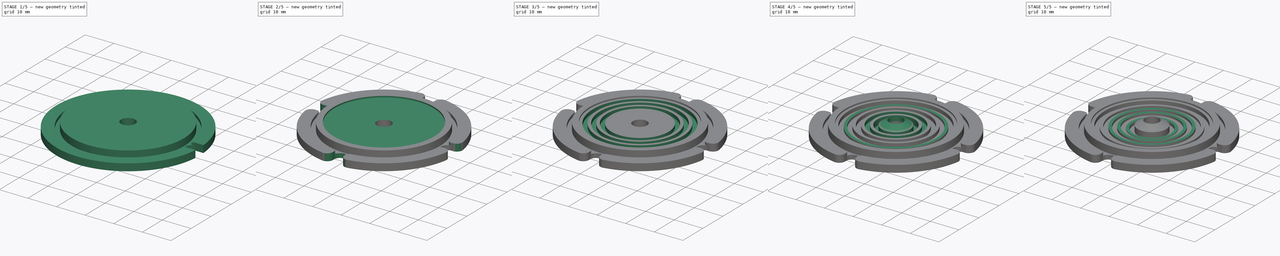
[diagram: build sequence overview — one tinted view per stage of 5, left to right]
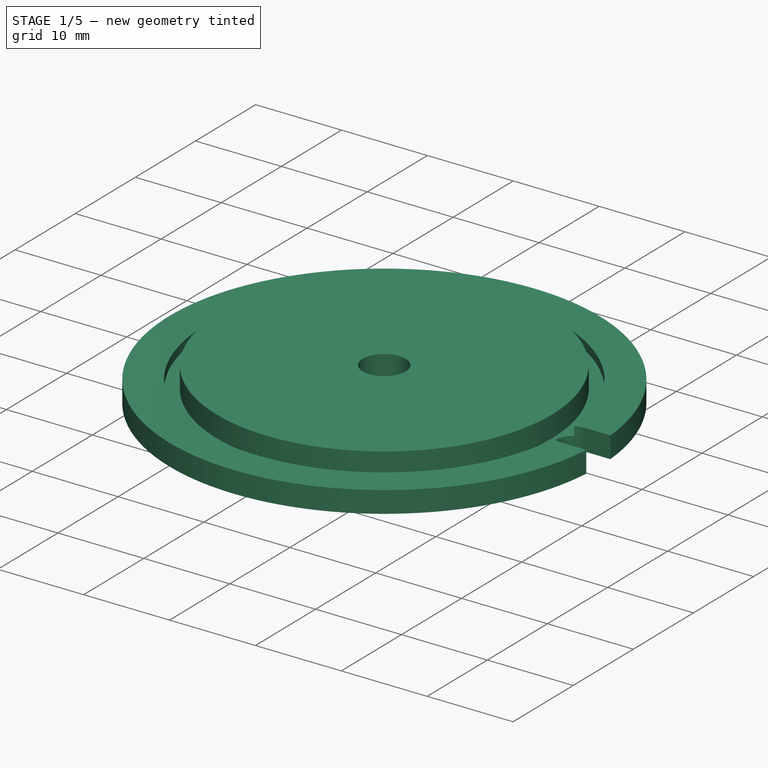
[diagram: stage 1 of 5 — iso view after this stage's code; geometry added in this stage tinted green]
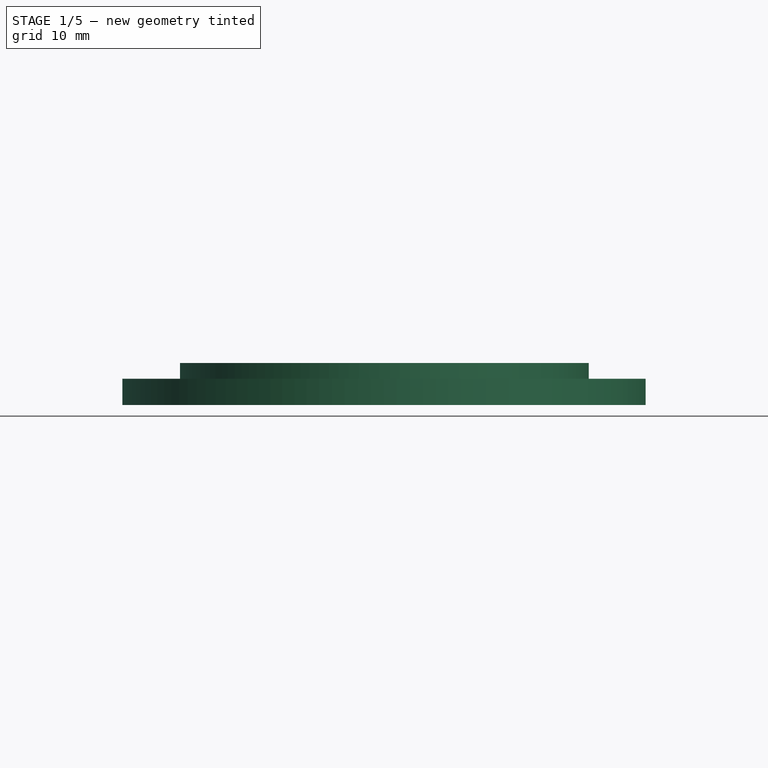
[diagram: stage 1 of 5 — front view after this stage's code; geometry added in this stage tinted green]
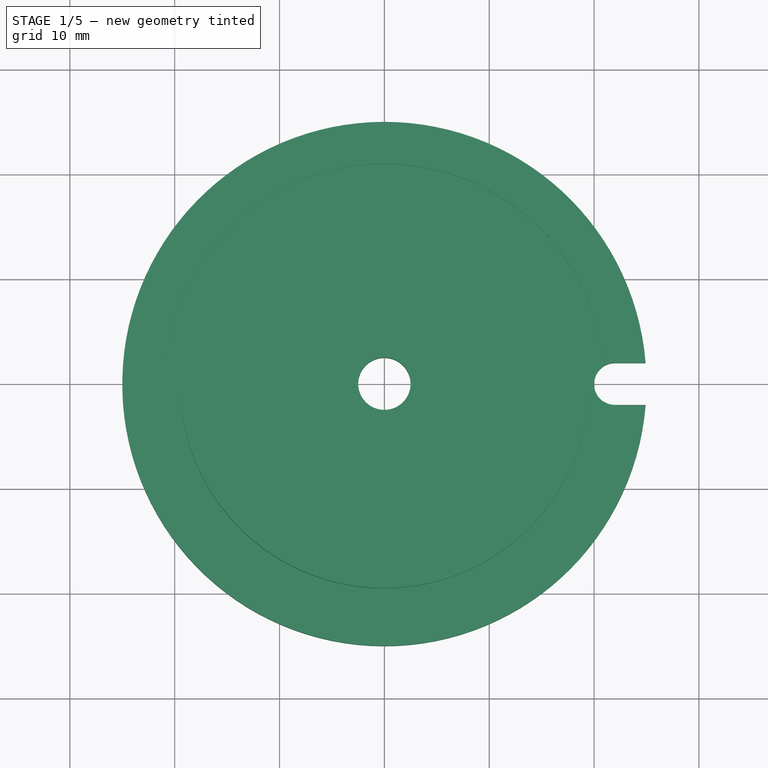
[diagram: stage 1 of 5 — top view after this stage's code; geometry added in this stage tinted green]
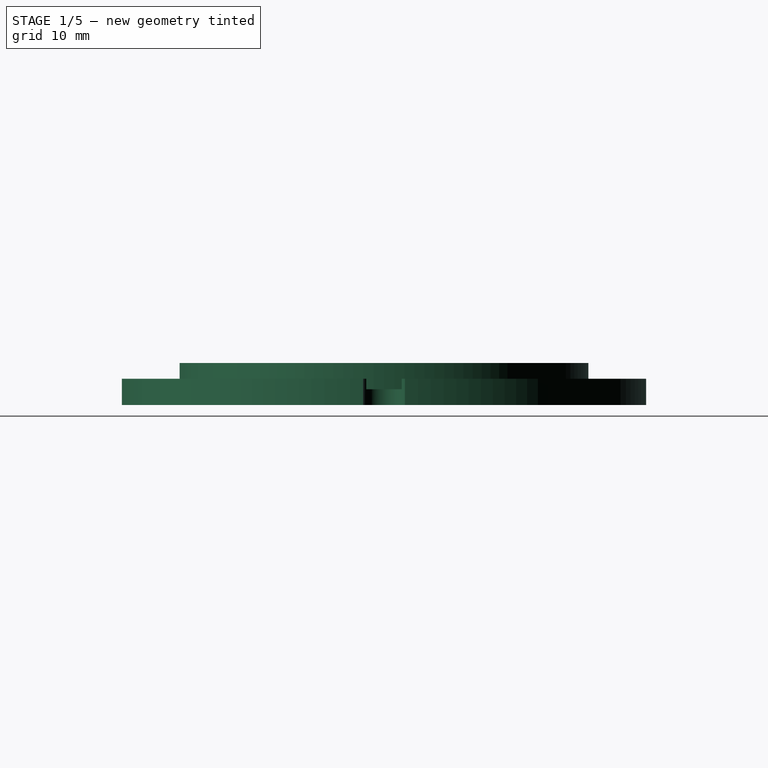
[diagram: stage 1 of 5 — right view after this stage's code; geometry added in this stage tinted green]
FCSTD DOCUMENT  (FreeCAD 0.18.3R)
Label: joystick_shaft_boot
License: All rights reserved
LicenseURL: http://en.wikipedia.org/wiki/All_rights_reserved
objects: PartDesign::Pocket×14, Sketcher::SketchObject×11, PartDesign::Fillet×2, PartDesign::Pad×1, PartDesign::PolarPattern×1, PartDesign::Revolution×1, PartDesign::Body×1
note: 47 computed .brp shape members not serialized (recipe doc carries the construction recipe); baked Part::Feature solids carry a one-line shape summary decoded from their .brp

FEATURE [Sketcher::SketchObject] Sketch
  MapMode = 5
  Support = -> [XY_Plane]
  sketch-geometry (2):
    g0: Circle CenterX=0 CenterY=0 CenterZ=0 NormalX=0 NormalY=0 NormalZ=1 AngleXU=0 Radius=25
    g1: Circle CenterX=0 CenterY=0 CenterZ=0 NormalX=0 NormalY=0 NormalZ=1 AngleXU=0 Radius=2.5
  constraints (4):
    c: Coincident(g0,g-1)
    c: Diameter(g0) = 50
    c: Coincident(g1,g0)
    c: Diameter(g1) = 5
FEATURE [PartDesign::Pad] Pad
  Length = 4
  Length2 = 100
  Profile = -> Sketch
  Type = 0
FEATURE [Sketcher::SketchObject] Sketch001
  ExternalGeometry = -> [Pad]
  MapMode = 5
  Placement = pos=(0,0,4) rot=(0,0,1;0rad)
  Support = -> [Pad]
  sketch-geometry (3):
    g0: Circle CenterX=0 CenterY=0 CenterZ=0 NormalX=0 NormalY=0 NormalZ=1 AngleXU=0 Radius=19.5
    g1: LineSegment [constr] StartX=25 StartY=0 StartZ=0 EndX=19.5 EndY=0 EndZ=0
    g2: Circle CenterX=0 CenterY=0 CenterZ=0 NormalX=0 NormalY=0 NormalZ=1 AngleXU=0 Radius=25
  constraints (8):
    c: Coincident(g0,g-1)
    c: PointOnObject(g1,g-1)
    c: PointOnObject(g1,g-1)
    c: PointOnObject(g1,g0)
    c: PointOnObject(g1,g-3)
    c: DistanceX(g1,g1) = 5.5
    c: Coincident(g2,g0)
    c: Equal(g2,g-3)
FEATURE [PartDesign::Pocket] Pocket
  BaseFeature = -> Pad
  Length = 1.5
  Length2 = 100
  Profile = -> Sketch001
  Type = 0
FEATURE [Sketcher::SketchObject] Sketch002
  ExternalGeometry = -> [Pocket]
  MapMode = 5
  Placement = pos=(0,0,2.5) rot=(0,0,1;0rad)
  Support = -> [Pocket]
  sketch-geometry (3):
    g0: Circle CenterX=0 CenterY=0 CenterZ=0 NormalX=0 NormalY=0 NormalZ=1 AngleXU=0 Radius=21
    g1: LineSegment [constr] StartX=19.5 StartY=0 StartZ=0 EndX=21 EndY=0 EndZ=0
    g2: Circle CenterX=0 CenterY=0 CenterZ=0 NormalX=0 NormalY=0 NormalZ=1 AngleXU=0 Radius=19.5
  constraints (8):
    c: Coincident(g0,g-1)
    c: PointOnObject(g1,g-1)
    c: Horizontal(g1)
    c: PointOnObject(g1,g0)
    c: PointOnObject(g1,g-3)
    c: DistanceX(g1,g1) = 1.5
    c: Coincident(g2,g0)
    c: Equal(g2,g-3)
FEATURE [PartDesign::Pocket] Pocket001
  BaseFeature = -> Pocket
  Length = 1
  Length2 = 100
  Profile = -> Sketch002
  Type = 0
FEATURE [Sketcher::SketchObject] Sketch003
  ExternalGeometry = -> [Pocket001]
  MapMode = 5
  Placement = pos=(0,0,2.5) rot=(0,0,1;0rad)
  Support = -> [Pocket001]
  sketch-geometry (7):
    g0: LineSegment StartX=22 StartY=2 StartZ=0 EndX=27 EndY=2 EndZ=0
    g1: LineSegment StartX=27 StartY=2 StartZ=0 EndX=27 EndY=-2 EndZ=0
    g2: LineSegment StartX=27 StartY=-2 StartZ=0 EndX=22 EndY=-2 EndZ=0
    g3: LineSegment [constr] StartX=22 StartY=-2 StartZ=0 EndX=22 EndY=2 EndZ=0
    g4: LineSegment [constr] StartX=27 StartY=0 StartZ=0 EndX=22 EndY=0 EndZ=0
    g5: ArcOfCircle CenterX=22 CenterY=0 CenterZ=0 NormalX=0 NormalY=0 NormalZ=1 AngleXU=0 Radius=2 StartAngle=1.5708 EndAngle=4.71239
    g6: LineSegment [constr] StartX=21 StartY=0 StartZ=0 EndX=22 EndY=0 EndZ=0
  constraints (20):
    c: Coincident(g0,g1)
    c: Coincident(g1,g2)
    c: Coincident(g2,g3)
    c: Coincident(g3,g0)
    c: Horizontal(g0)
    c: Horizontal(g2)
    c: Vertical(g3)
    c: Symmetric(g1,g0,g-1)
    c: DistanceX(g0,g0) = 5
    c: PointOnObject(g4,g-1)
    c: PointOnObject(g4,g1)
    c: Coincident(g5,g4)
    c: Coincident(g5,g0)
    c: Coincident(g5,g2)
    c: DistanceY(g1,g1) = 4
    c: PointOnObject(g6,g-1)
    c: Coincident(g5,g6)
    c: PointOnObject(g6,g-4)
    c: DistanceX(g6,g6) = 1
    c: PointOnObject(g5,g3)
FEATURE [PartDesign::Pocket] Pocket002
  BaseFeature = -> Pocket001
  Length = 5
  Length2 = 100
  Profile = -> Sketch003
  Type = 0
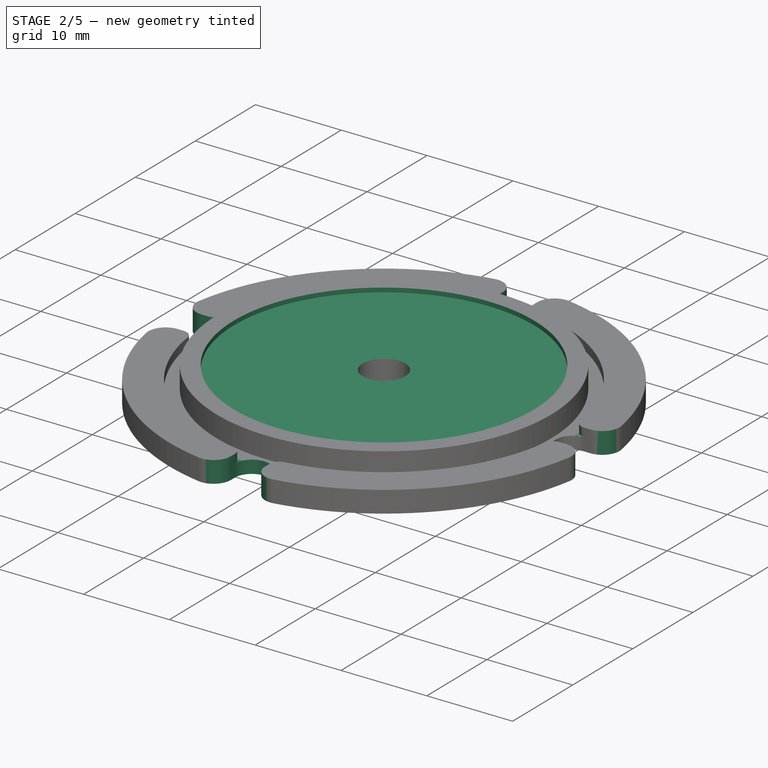
[diagram: stage 2 of 5 — iso view after this stage's code; geometry added in this stage tinted green]
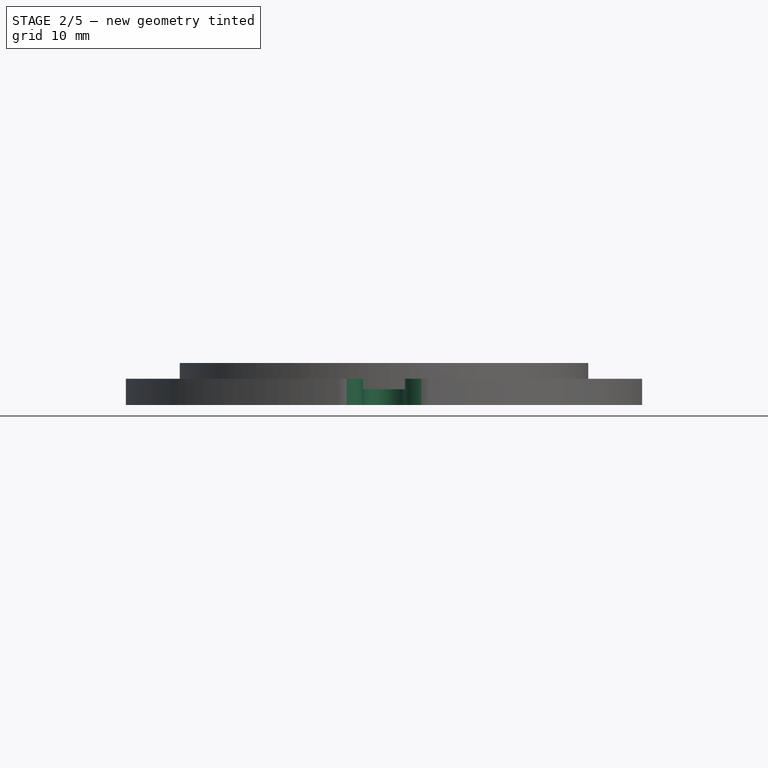
[diagram: stage 2 of 5 — front view after this stage's code; geometry added in this stage tinted green]
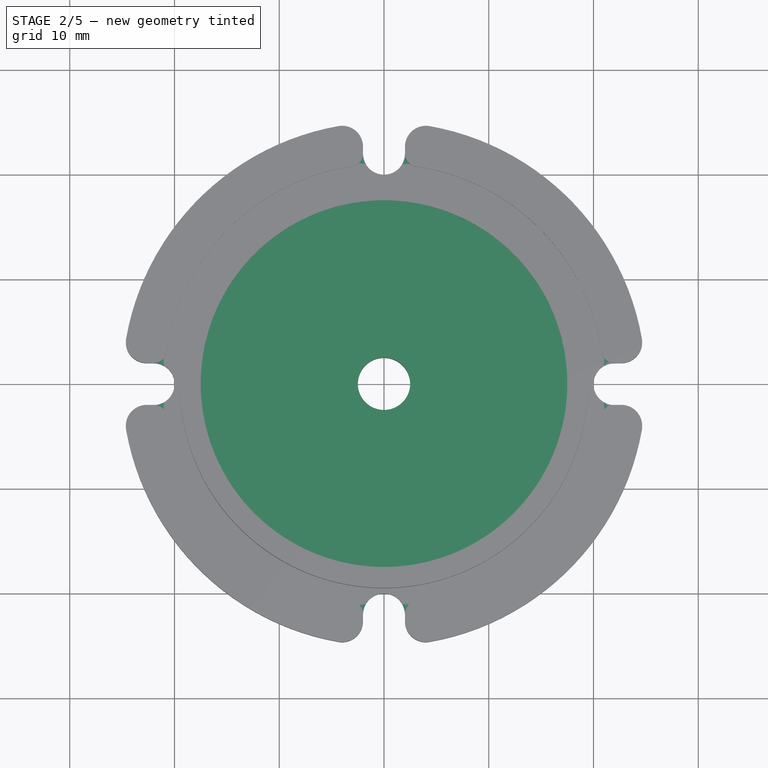
[diagram: stage 2 of 5 — top view after this stage's code; geometry added in this stage tinted green]
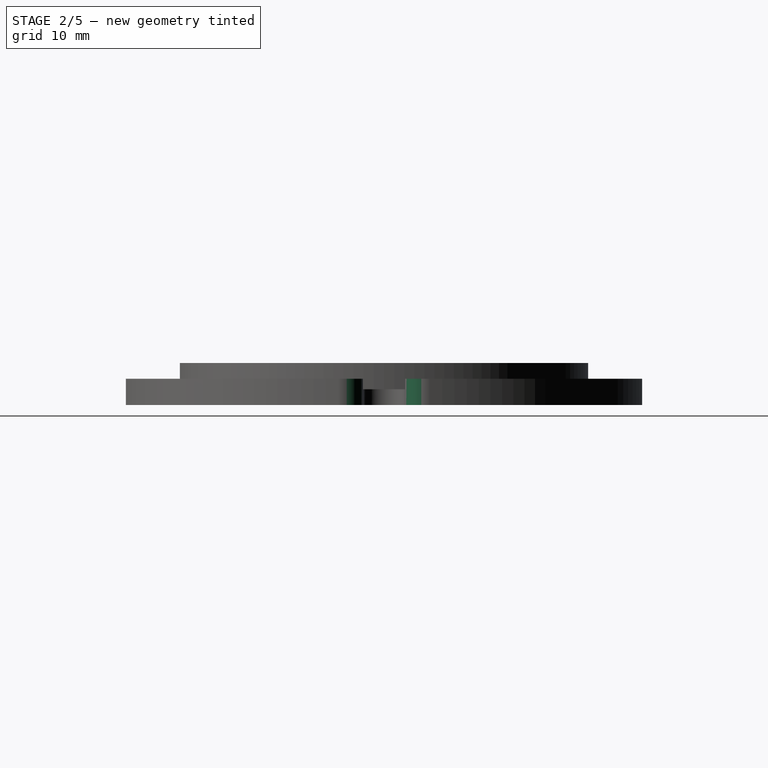
[diagram: stage 2 of 5 — right view after this stage's code; geometry added in this stage tinted green]
FEATURE [PartDesign::PolarPattern] PolarPattern
  Angle = 360
  Axis = -> Z_Axis
  BaseFeature = -> Pocket002
  Occurrences = 4
  Originals = -> [Pocket002]
FEATURE [PartDesign::Fillet] Fillet
  Base = -> PolarPattern [Edge46,Edge36,Edge4,Edge34,Edge60,Edge2,Edge58,Edge48]
  BaseFeature = -> PolarPattern
  Radius = 2
FEATURE [PartDesign::Fillet] Fillet001
  Base = -> Fillet [Edge55,Edge57,Edge85,Edge83,Edge66,Edge68,Edge43,Edge45]
  BaseFeature = -> Fillet
  Radius = 1.2
FEATURE [Sketcher::SketchObject] Sketch004
  ExternalGeometry = -> [Fillet001]
  MapMode = 5
  Placement = pos=(0,0,4) rot=(0,0,1;0rad)
  Support = -> [Fillet001]
  sketch-geometry (2):
    g0: Circle CenterX=0 CenterY=0 CenterZ=0 NormalX=0 NormalY=0 NormalZ=1 AngleXU=0 Radius=17.5
    g1: LineSegment [constr] StartX=17.5 StartY=0 StartZ=0 EndX=19.5 EndY=0 EndZ=0
  constraints (6):
    c: Coincident(g0,g-1)
    c: PointOnObject(g1,g-1)
    c: PointOnObject(g1,g-1)
    c: PointOnObject(g1,g-3)
    c: PointOnObject(g1,g0)
    c: DistanceX(g1,g1) = 2
FEATURE [PartDesign::Pocket] Pocket003
  BaseFeature = -> Fillet001
  Length = 0.5
  Length2 = 100
  Profile = -> Sketch004
  Type = 0
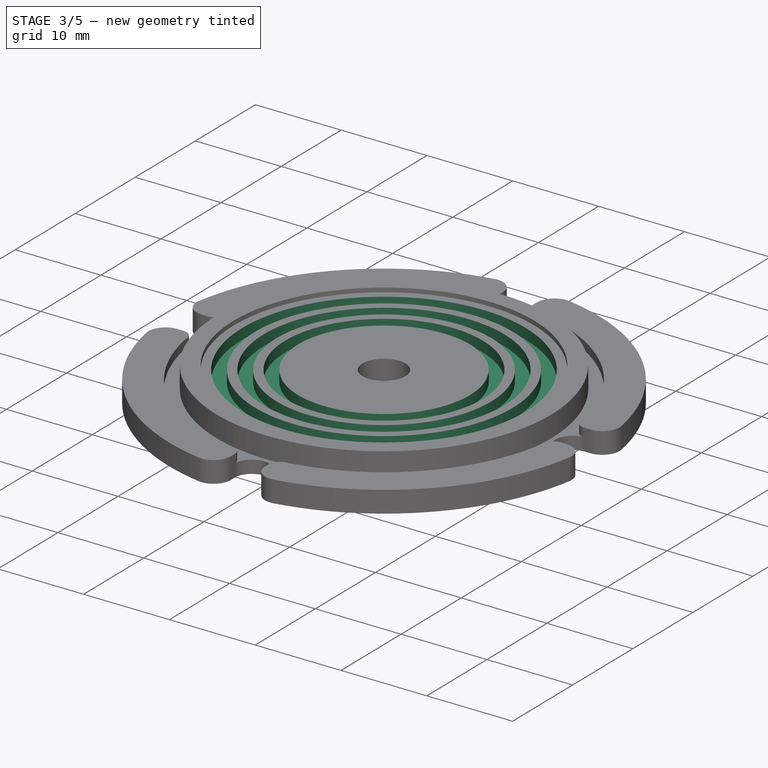
[diagram: stage 3 of 5 — iso view after this stage's code; geometry added in this stage tinted green]
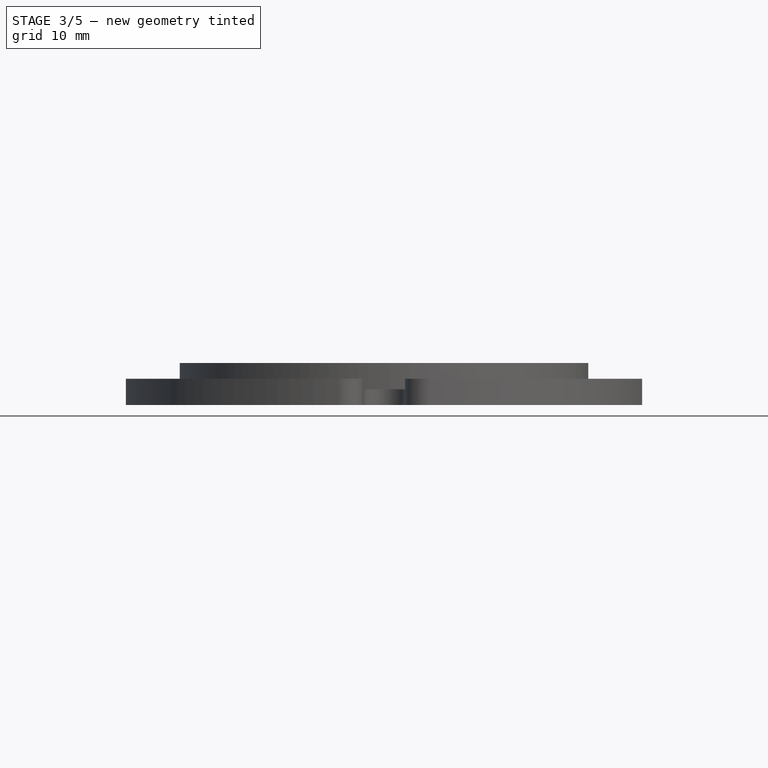
[diagram: stage 3 of 5 — front view after this stage's code; geometry added in this stage tinted green]
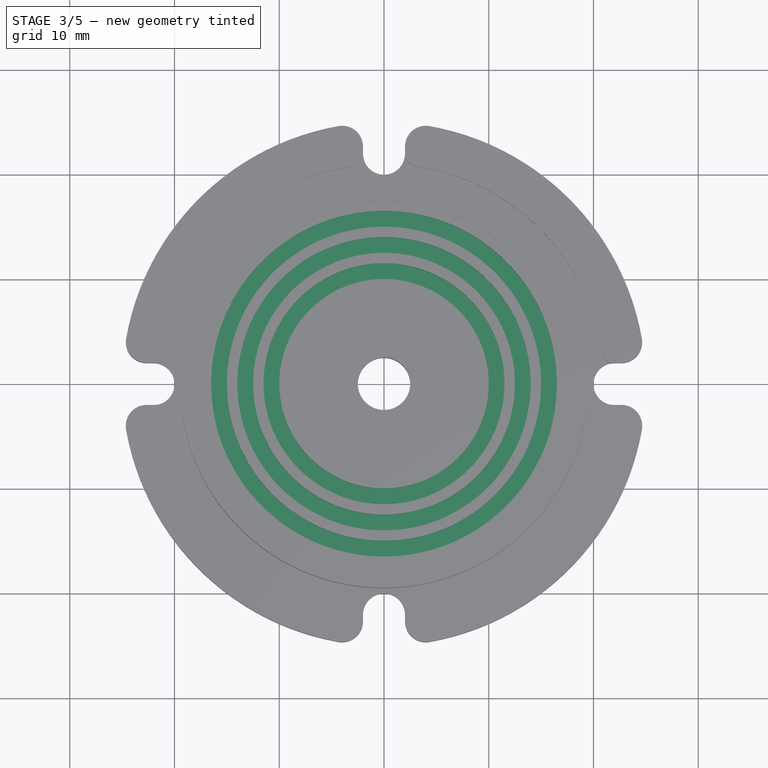
[diagram: stage 3 of 5 — top view after this stage's code; geometry added in this stage tinted green]
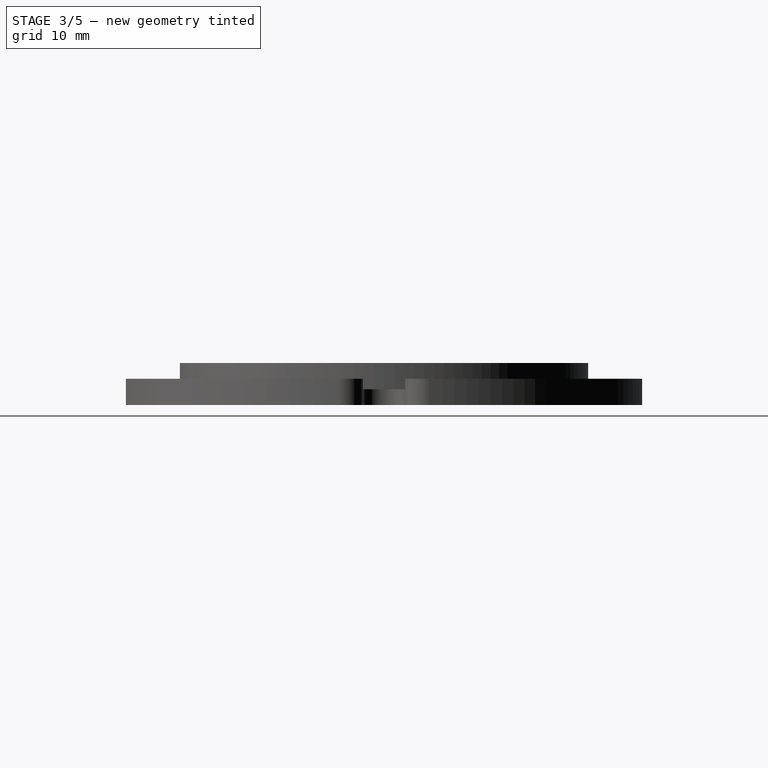
[diagram: stage 3 of 5 — right view after this stage's code; geometry added in this stage tinted green]
FEATURE [Sketcher::SketchObject] Sketch005
  ExternalGeometry = -> [Pocket003]
  MapMode = 5
  Placement = pos=(0,0,3.5) rot=(0,0,1;0rad)
  Support = -> [Pocket003]
  sketch-geometry (4):
    g0: Circle CenterX=0 CenterY=0 CenterZ=0 NormalX=0 NormalY=0 NormalZ=1 AngleXU=0 Radius=16.5
    g1: LineSegment [constr] StartX=16.5 StartY=0 StartZ=0 EndX=17.5 EndY=0 EndZ=0
    g2: LineSegment [constr] StartX=16.5 StartY=0 StartZ=0 EndX=15 EndY=0 EndZ=0
    g3: Circle CenterX=0 CenterY=0 CenterZ=0 NormalX=0 NormalY=0 NormalZ=1 AngleXU=0 Radius=15
  constraints (11):
    c: Coincident(g0,g-1)
    c: PointOnObject(g1,g-1)
    c: PointOnObject(g1,g-1)
    c: PointOnObject(g1,g-3)
    c: PointOnObject(g1,g0)
    c: DistanceX(g1,g1) = 1
    c: PointOnObject(g2,g-1)
    c: Coincident(g3,g0)
    c: PointOnObject(g2,g3)
    c: DistanceX(g2,g2) = 1.5
    c: Coincident(g2,g1)
FEATURE [PartDesign::Pocket] Pocket004
  BaseFeature = -> Pocket003
  Length = 1.25
  Length2 = 100
  Profile = -> Sketch005
  Type = 0
FEATURE [Sketcher::SketchObject] Sketch006
  ExternalGeometry = -> [Pocket004]
  MapMode = 5
  Placement = pos=(0,0,3.5) rot=(0,0,1;0rad)
  Support = -> [Pocket004]
  sketch-geometry (4):
    g0: Circle CenterX=0 CenterY=0 CenterZ=0 NormalX=0 NormalY=0 NormalZ=1 AngleXU=0 Radius=14
    g1: LineSegment [constr] StartX=14 StartY=0 StartZ=0 EndX=15 EndY=0 EndZ=0
    g2: LineSegment [constr] StartX=12.5 StartY=0 StartZ=0 EndX=14 EndY=0 EndZ=0
    g3: Circle CenterX=0 CenterY=0 CenterZ=0 NormalX=0 NormalY=0 NormalZ=1 AngleXU=0 Radius=12.5
  constraints (11):
    c: Coincident(g0,g-1)
    c: PointOnObject(g1,g-1)
    c: PointOnObject(g1,g-1)
    c: PointOnObject(g1,g-3)
    c: PointOnObject(g1,g0)
    c: DistanceX(g1,g1) = 1
    c: PointOnObject(g2,g-1)
    c: Coincident(g2,g1)
    c: DistanceX(g2,g2) = 1.5
    c: Coincident(g3,g0)
    c: PointOnObject(g2,g3)
FEATURE [PartDesign::Pocket] Pocket005
  BaseFeature = -> Pocket004
  Length = 1.25
  Length2 = 100
  Profile = -> Sketch006
  Type = 0
FEATURE [Sketcher::SketchObject] Sketch007
  ExternalGeometry = -> [Pocket005]
  MapMode = 5
  Placement = pos=(0,0,3.5) rot=(0,0,1;0rad)
  Support = -> [Pocket005]
  sketch-geometry (4):
    g0: Circle CenterX=0 CenterY=0 CenterZ=0 NormalX=0 NormalY=0 NormalZ=1 AngleXU=0 Radius=11.5
    g1: Circle CenterX=0 CenterY=0 CenterZ=0 NormalX=0 NormalY=0 NormalZ=1 AngleXU=0 Radius=10
    g2: LineSegment [constr] StartX=12.5 StartY=0 StartZ=0 EndX=11.5 EndY=0 EndZ=0
    g3: LineSegment [constr] StartX=10 StartY=0 StartZ=0 EndX=11.5 EndY=0 EndZ=0
  constraints (11):
    c: Coincident(g0,g-1)
    c: Coincident(g1,g0)
    c: PointOnObject(g2,g-1)
    c: PointOnObject(g2,g-1)
    c: PointOnObject(g2,g0)
    c: PointOnObject(g2,g-3)
    c: DistanceX(g2,g2) = 1
    c: Horizontal(g3)
    c: Coincident(g2,g3)
    c: PointOnObject(g3,g1)
    c: DistanceX(g3,g3) = 1.5
FEATURE [PartDesign::Pocket] Pocket006
  BaseFeature = -> Pocket005
  Length = 1.25
  Length2 = 100
  Profile = -> Sketch007
  Type = 0
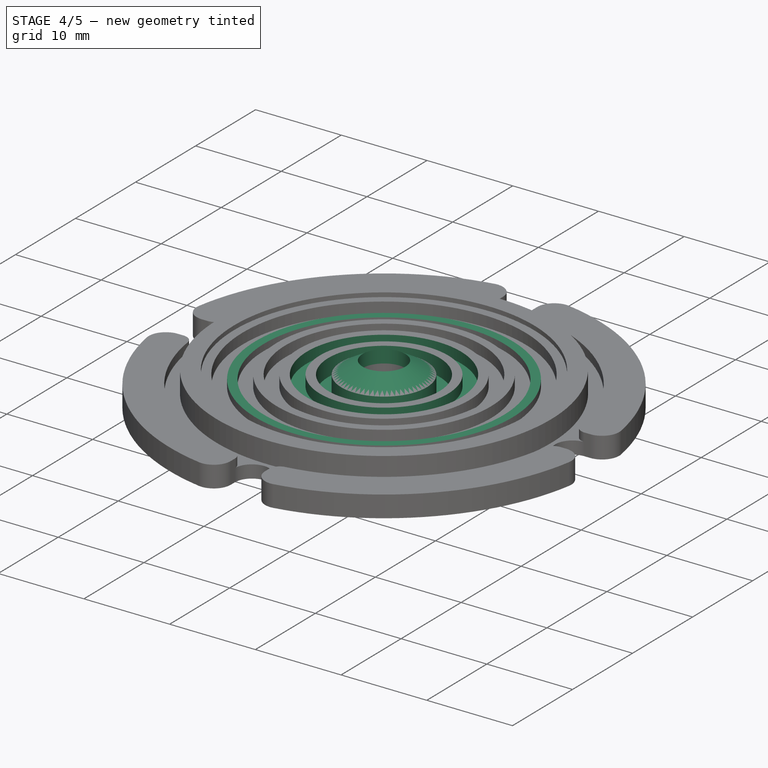
[diagram: stage 4 of 5 — iso view after this stage's code; geometry added in this stage tinted green]
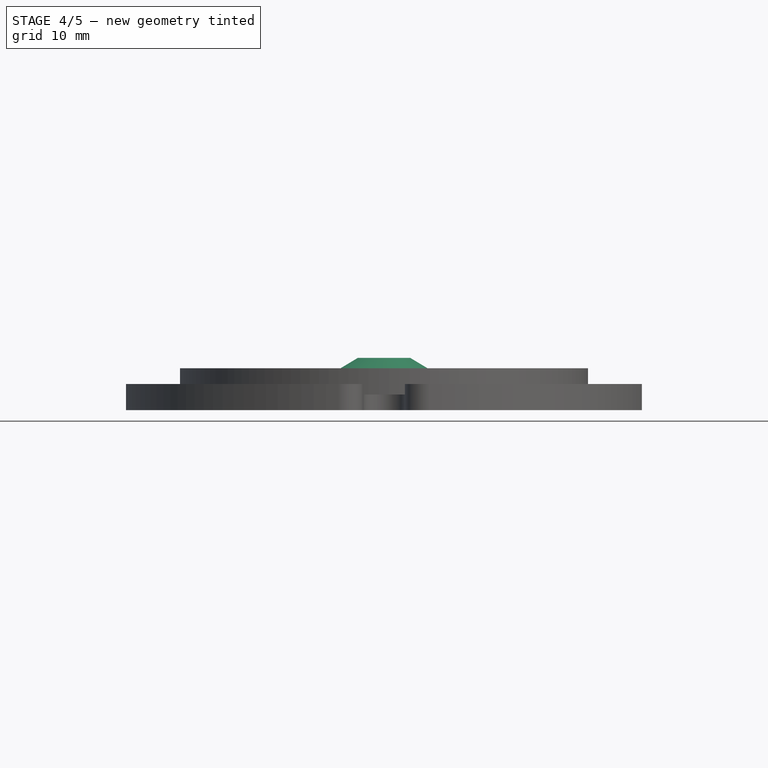
[diagram: stage 4 of 5 — front view after this stage's code; geometry added in this stage tinted green]
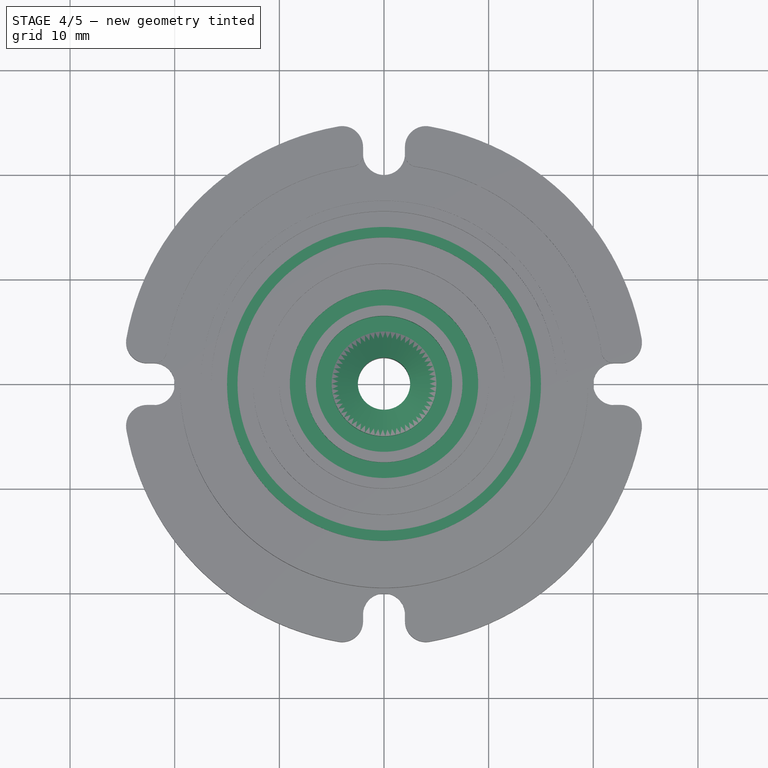
[diagram: stage 4 of 5 — top view after this stage's code; geometry added in this stage tinted green]
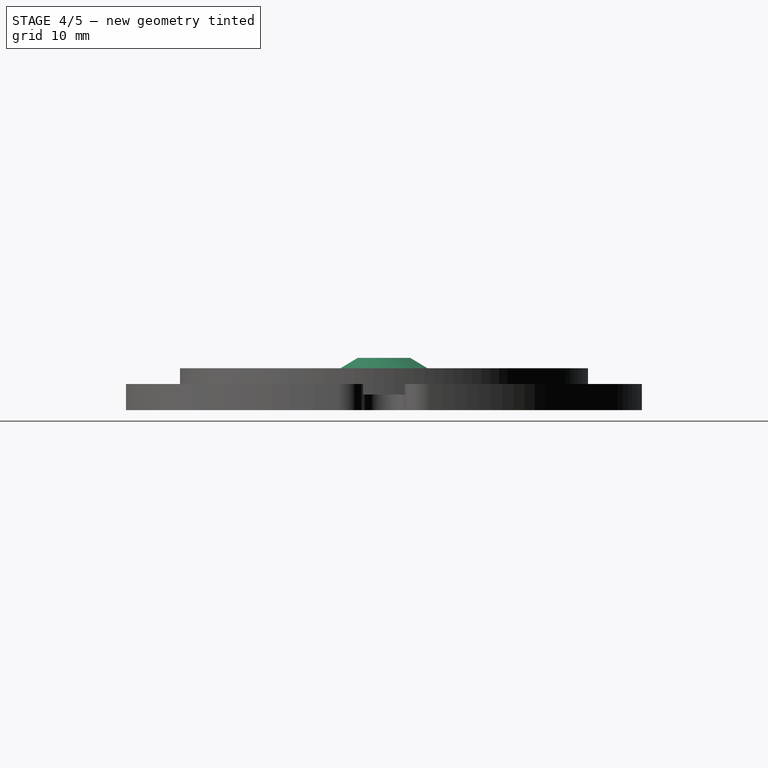
[diagram: stage 4 of 5 — right view after this stage's code; geometry added in this stage tinted green]
FEATURE [Sketcher::SketchObject] Sketch008
  ExternalGeometry = -> [Pocket006]
  MapMode = 5
  Placement = pos=(0,0,3.5) rot=(0,0,1;0rad)
  Support = -> [Pocket006]
  sketch-geometry (4):
    g0: LineSegment [constr] StartX=10 StartY=0 StartZ=0 EndX=9 EndY=0 EndZ=0
    g1: LineSegment [constr] StartX=7.5 StartY=0 StartZ=0 EndX=9 EndY=0 EndZ=0
    g2: Circle CenterX=0 CenterY=0 CenterZ=0 NormalX=0 NormalY=0 NormalZ=1 AngleXU=0 Radius=9
    g3: Circle CenterX=0 CenterY=0 CenterZ=0 NormalX=0 NormalY=0 NormalZ=1 AngleXU=0 Radius=7.5
  constraints (11):
    c: PointOnObject(g0,g-1)
    c: Horizontal(g0)
    c: Horizontal(g1)
    c: Coincident(g2,g-1)
    c: Coincident(g3,g2)
    c: PointOnObject(g0,g-3)
    c: PointOnObject(g0,g2)
    c: DistanceX(g0,g0) = 1
    c: Coincident(g1,g0)
    c: PointOnObject(g1,g3)
    c: DistanceX(g1,g1) = 1.5
FEATURE [PartDesign::Pocket] Pocket007
  BaseFeature = -> Pocket006
  Length = 1.25
  Length2 = 100
  Profile = -> Sketch008
  Type = 0
FEATURE [Sketcher::SketchObject] Sketch009
  ExternalGeometry = -> [Pocket007]
  MapMode = 5
  Placement = pos=(0,0,3.5) rot=(0,0,1;0rad)
  Support = -> [Pocket007]
  sketch-geometry (4):
    g0: Circle CenterX=0 CenterY=0 CenterZ=0 NormalX=0 NormalY=0 NormalZ=1 AngleXU=0 Radius=6.5
    g1: Circle CenterX=0 CenterY=0 CenterZ=0 NormalX=0 NormalY=0 NormalZ=1 AngleXU=0 Radius=5
    g2: LineSegment [constr] StartX=6.5 StartY=0 StartZ=0 EndX=7.5 EndY=0 EndZ=0
    g3: LineSegment [constr] StartX=6.5 StartY=0 StartZ=0 EndX=5 EndY=0 EndZ=0
  constraints (11):
    c: Coincident(g1,g0)
    c: PointOnObject(g2,g-1)
    c: PointOnObject(g2,g-1)
    c: Horizontal(g3)
    c: PointOnObject(g2,g-3)
    c: PointOnObject(g2,g0)
    c: Coincident(g3,g2)
    c: PointOnObject(g3,g1)
    c: DistanceX(g2,g2) = 1
    c: DistanceX(g3,g3) = 1.5
    c: Coincident(g0,g-1)
FEATURE [PartDesign::Pocket] Pocket008
  BaseFeature = -> Pocket007
  Length = 2
  Length2 = 100
  Profile = -> Sketch009
  Type = 0
FEATURE [Sketcher::SketchObject] Sketch010
  ExternalGeometry = -> [Pocket008]
  MapMode = 5
  Placement = pos=(0,0,0) rot=(1,0,0;1.5708rad)
  Support = -> [XZ_Plane]
  sketch-geometry (7):
    g0: LineSegment [constr] StartX=0 StartY=3.5 StartZ=0 EndX=1e-16 EndY=5 EndZ=0
    g1: LineSegment [constr] StartX=0 StartY=0 StartZ=0 EndX=0 EndY=3.5 EndZ=0
    g2: LineSegment [constr] StartX=0 StartY=3.5 StartZ=0 EndX=2.5 EndY=3.5 EndZ=0
    g3: LineSegment StartX=2.5 StartY=3.5 StartZ=0 EndX=5 EndY=3.5 EndZ=0
    g4: LineSegment [constr] StartX=1e-16 StartY=5 StartZ=0 EndX=2.5 EndY=5 EndZ=0
    g5: LineSegment StartX=2.5 StartY=3.5 StartZ=0 EndX=2.5 EndY=5 EndZ=0
    g6: LineSegment StartX=2.5 StartY=5 StartZ=0 EndX=5 EndY=3.5 EndZ=0
  constraints (20):
    c: PointOnObject(g0,g-2)
    c: PointOnObject(g0,g-2)
    c: Coincident(g1,g-1)
    c: DistanceY(g1,g1) = 3.5
    c: Coincident(g1,g0)
    c: DistanceY(g0,g0) = 1.5
    c: Coincident(g2,g0)
    c: Horizontal(g2)
    c: DistanceX(g2,g2) = 2.5
    c: Coincident(g3,g2)
    c: Coincident(g3,g-3)
    c: Equal(g4,g2)
    c: Equal(g4,g2)
    c: Coincident(g5,g3)
    c: Coincident(g5,g4)
    c: Vertical(g5)
    c: Coincident(g6,g5)
    c: Coincident(g6,g3)
    c: Horizontal(g4)
    c: Coincident(g4,g0)
FEATURE [PartDesign::Revolution] Revolution
  Angle = 360
  Axis = (0,2e-16,1)
  Base = (0,0,0)
  BaseFeature = -> Pocket008
  Profile = -> Sketch010
  ReferenceAxis = -> Sketch010 [V_Axis]
  Reversed = true
FEATURE [PartDesign::Pocket] Pocket009
  BaseFeature = -> Revolution
  Length = 0.5
  Length2 = 100
  Profile = -> Revolution [Face59]
  Type = 0
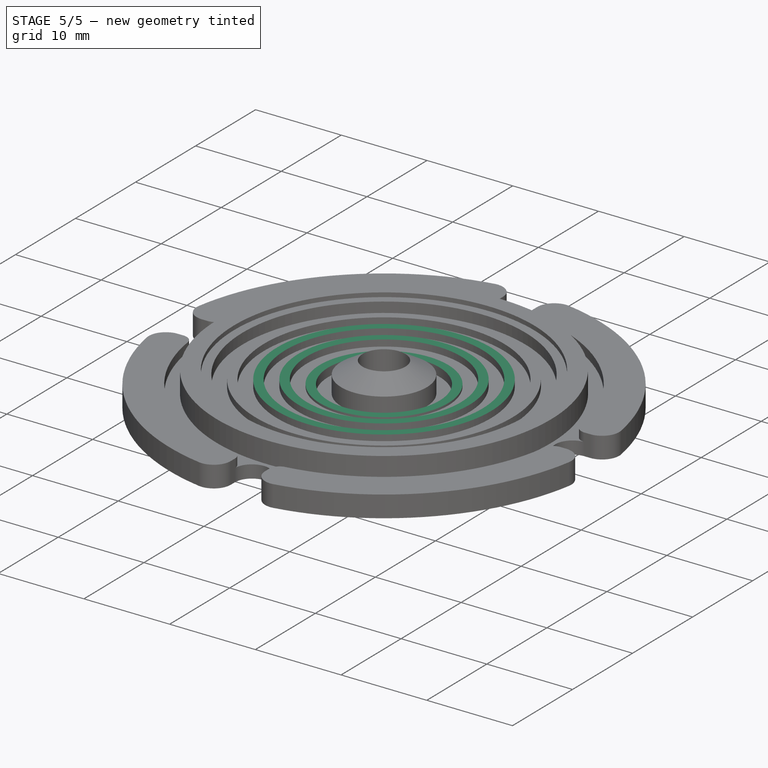
[diagram: stage 5 of 5 — iso view after this stage's code; geometry added in this stage tinted green]
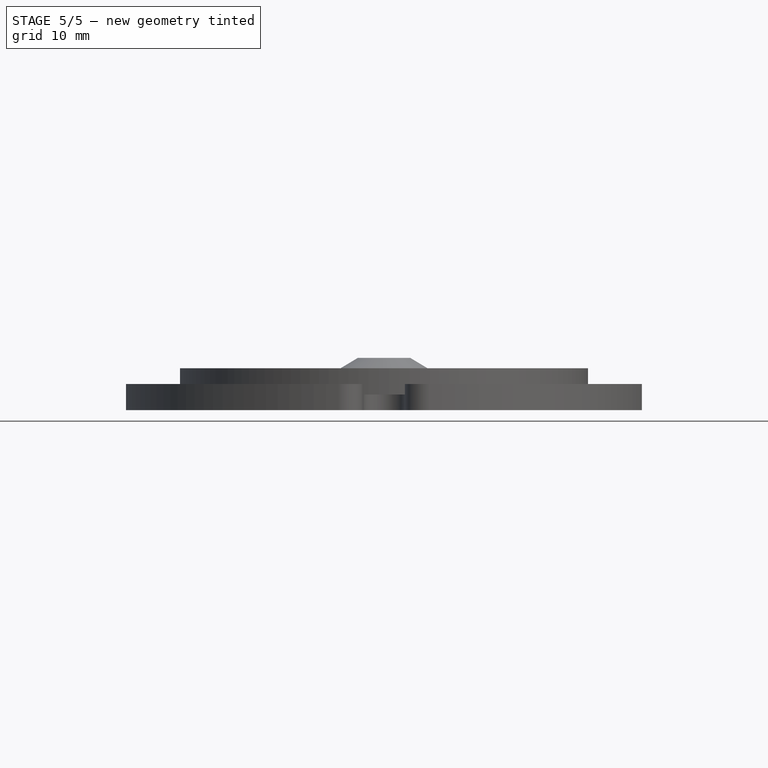
[diagram: stage 5 of 5 — front view after this stage's code; geometry added in this stage tinted green]
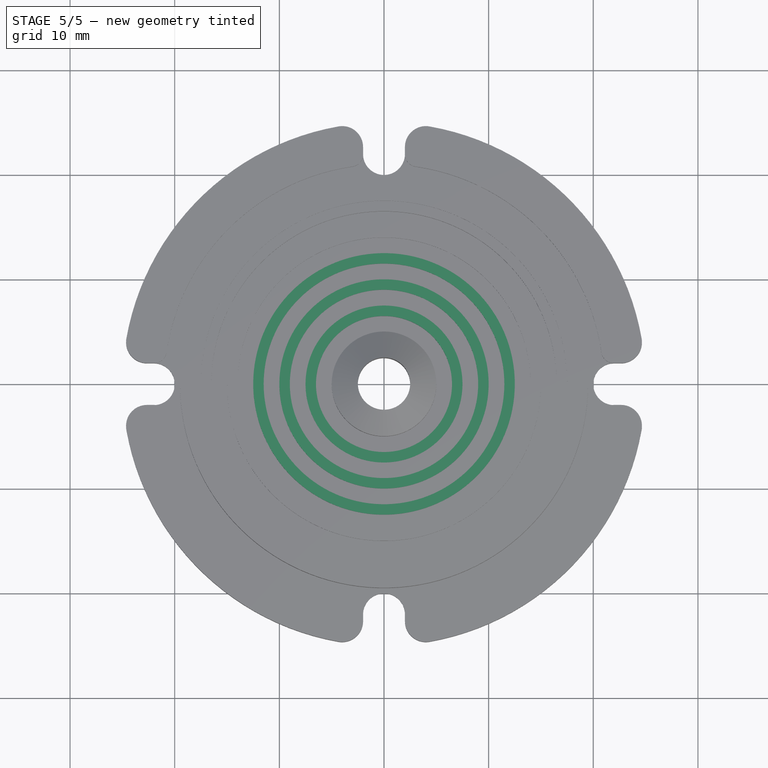
[diagram: stage 5 of 5 — top view after this stage's code; geometry added in this stage tinted green]
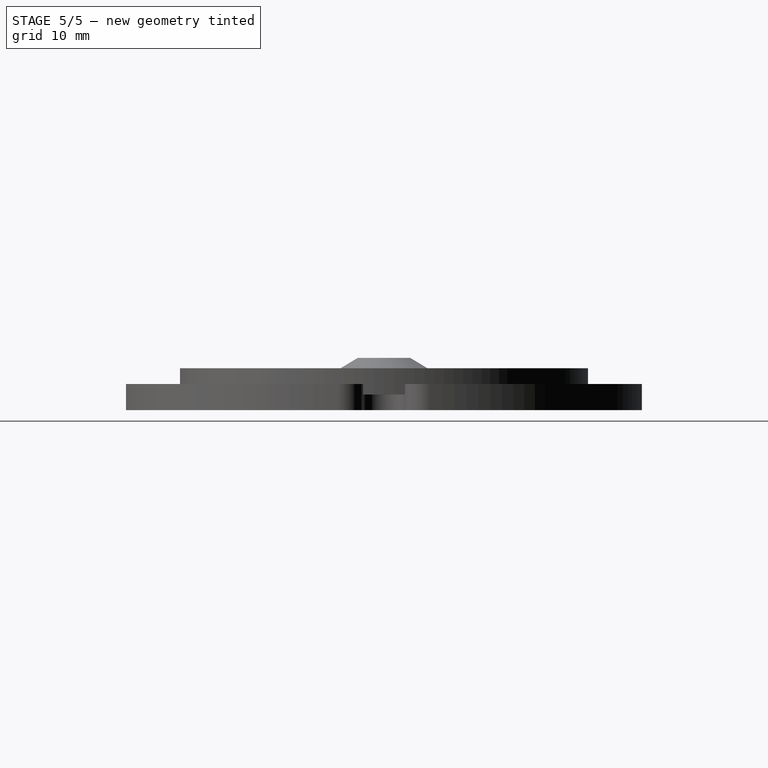
[diagram: stage 5 of 5 — right view after this stage's code; geometry added in this stage tinted green]
FEATURE [PartDesign::Pocket] Pocket010
  BaseFeature = -> Pocket009
  Length = 0.5
  Length2 = 100
  Profile = -> Pocket009 [Face67]
  Type = 0
FEATURE [PartDesign::Pocket] Pocket011
  BaseFeature = -> Pocket010
  Length = 0.5
  Length2 = 100
  Profile = -> Pocket010 [Face64]
  Type = 0
FEATURE [PartDesign::Pocket] Pocket012
  BaseFeature = -> Pocket011
  Length = 0.5
  Length2 = 100
  Profile = -> Pocket011 [Face56]
  Type = 0
FEATURE [PartDesign::Pocket] Pocket013
  BaseFeature = -> Pocket012
  Length = 0.5
  Length2 = 100
  Profile = -> Pocket012 [Face56]
  Type = 0
FEATURE [PartDesign::Body] Body
  Group = -> [Sketch,Pad,Sketch001,Pocket,Sketch002,Pocket001,Sketch003,Pocket002,PolarPattern,Fillet,Fillet001,Sketch004,Pocket003,Sketch005,Pocket004,Sketch006,Pocket005,Sketch007,Pocket006,Sketch008,Pocket007,Sketch009,Pocket008,Sketch010,Revolution,Pocket009,Pocket010,Pocket011,Pocket012,Pocket013]
  Origin = -> Origin
  Tip = -> Pocket013
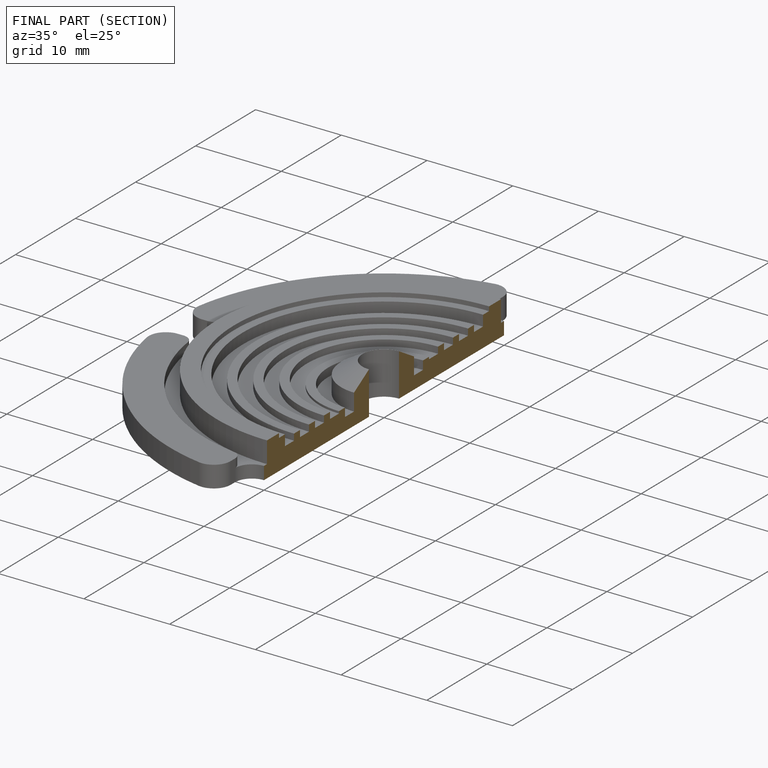
[diagram: finished part — half-section view (interior)]
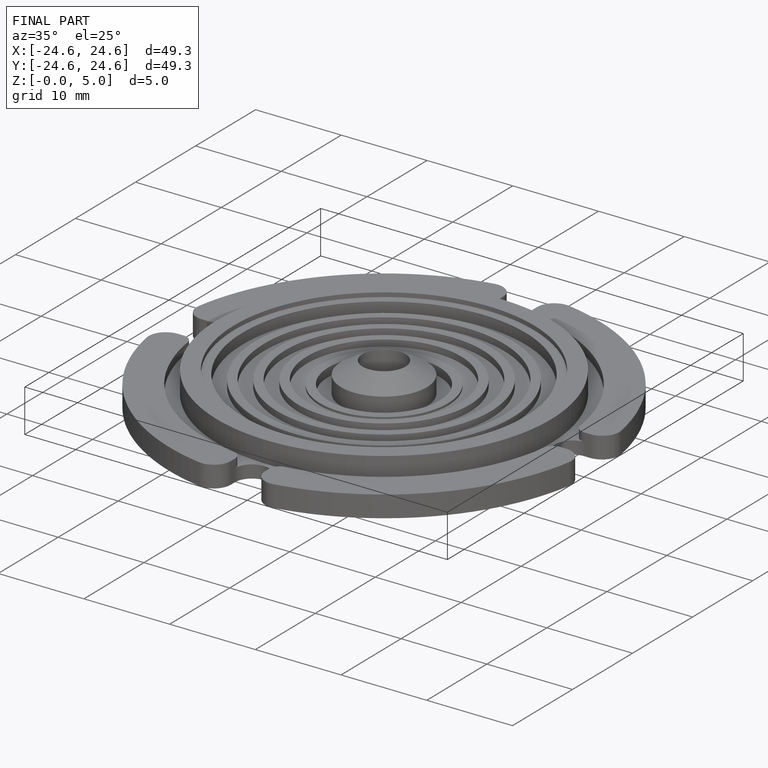
[diagram: finished part — iso view with bounding-box wireframe]
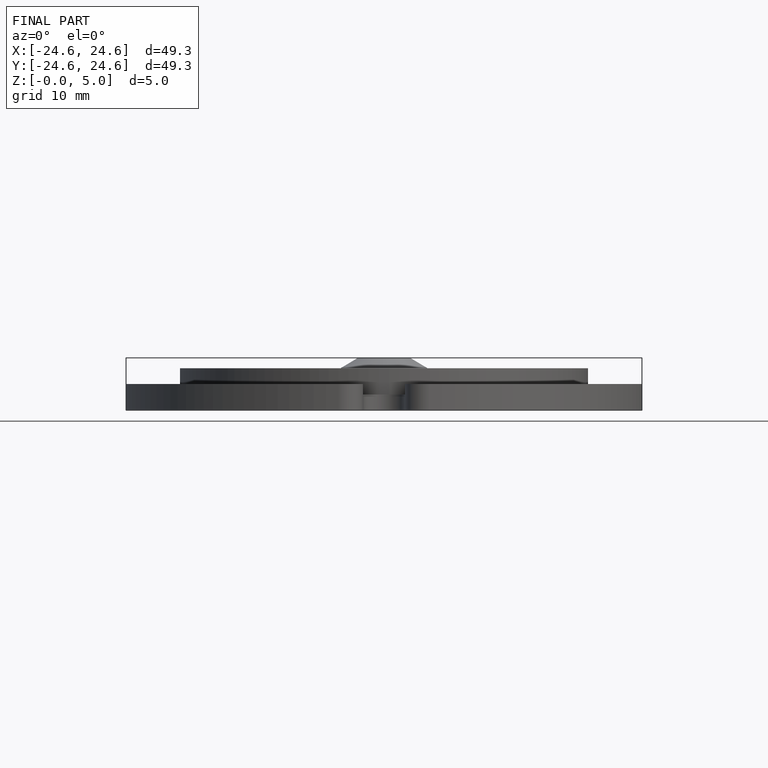
[diagram: finished part — front view with bounding-box wireframe]
